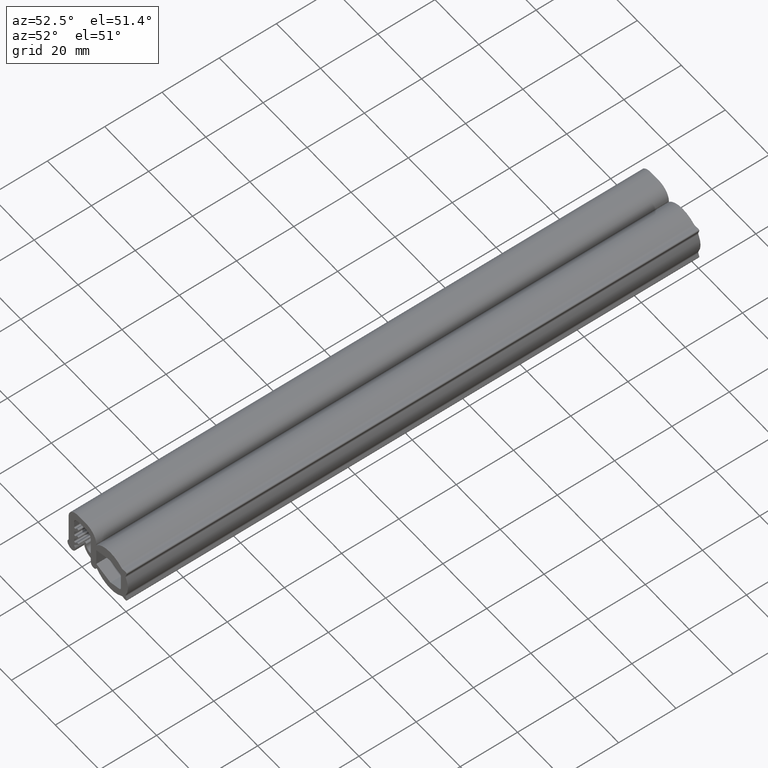
[diagram: clean part render]
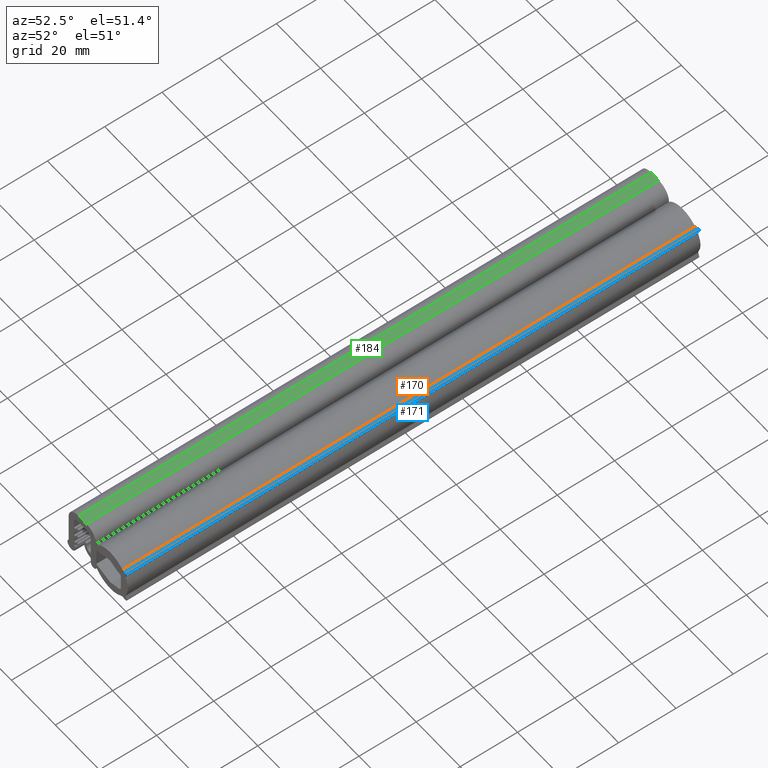
[diagram: same view with three faces highlighted in distinct colors, each labeled with its STEP entity id]
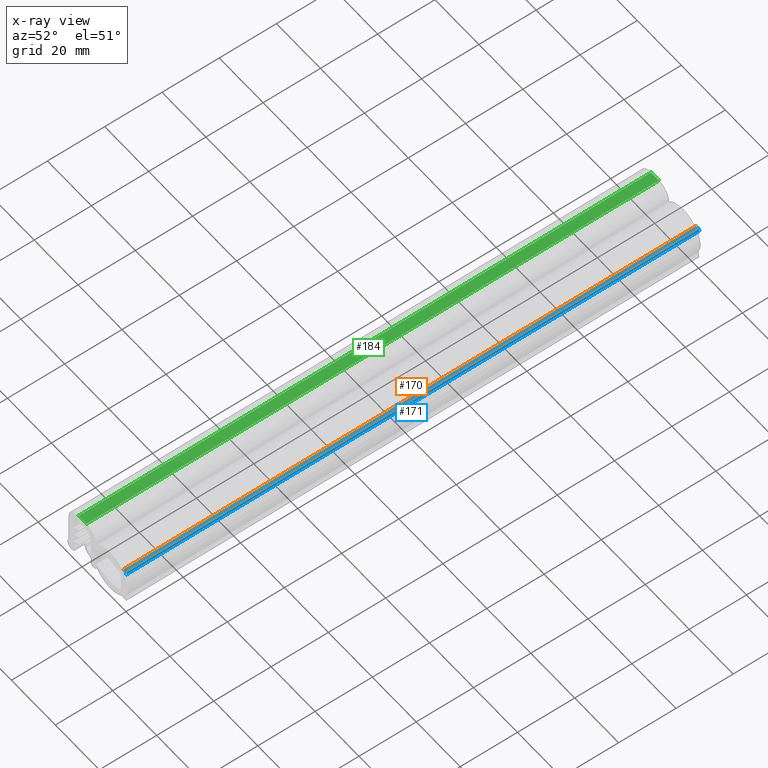
[diagram: x-ray of the same camera — body ghosted, the three highlighted faces saturated]
A machine part, auxiliary view with three faces highlighted in distinct colors.
The next image is the same camera in x-ray (body ghosted, the three faces saturated) — at least one of them is partly hidden behind the body in this view.
Their STEP definitions:

[orange] entity #170 — the highlighted planar face has unit normal (-0.1683, 0, 0.9857).
#170=ADVANCED_FACE('',(#451),#450,.T.);
#450=PLANE('',#1260);
#451=FACE_OUTER_BOUND('',#1261,.T.);
#1257=CARTESIAN_POINT('',(1.85283006118E+01,-1.00000000000E+01,1.42167251629E+01));
#1258=DIRECTION('',(-1.68327613766E-01,0.00000000000E+00,9.85731106562E-01));
#1259=DIRECTION('',(9.85731106562E-01,0.00000000000E+00,1.68327613766E-01));
#1260=AXIS2_PLACEMENT_3D('',#1257,#1258,#1259);
#1261=EDGE_LOOP('',(#1743,#1744,#1745,#1746));
#1743=ORIENTED_EDGE('',*,*,#2165,.F.);
#1744=ORIENTED_EDGE('',*,*,#2197,.F.);
#1745=ORIENTED_EDGE('',*,*,#2145,.T.);
#1746=ORIENTED_EDGE('',*,*,#2196,.T.);
#2145=EDGE_CURVE('',#2554,#2547,#2555,.T.);
#2165=EDGE_CURVE('',#2686,#2693,#2694,.T.);
#2196=EDGE_CURVE('',#2547,#2693,#2894,.T.);
#2197=EDGE_CURVE('',#2554,#2686,#2900,.T.);
#2547=VERTEX_POINT('',#4184);
#2554=VERTEX_POINT('',#4189);
#2555=LINE('',#4190,#4191);
#2686=VERTEX_POINT('',#4272);
#2693=VERTEX_POINT('',#4277);
#2694=LINE('',#4278,#4279);
#2894=LINE('',#4393,#4394);
#2900=LINE('',#4396,#4397);
#4184=CARTESIAN_POINT('',(1.86413174534E+01,2.00000000000E+02,1.42360243969E+01));
#4189=CARTESIAN_POINT('',(1.97714858697E+01,2.00000000000E+02,1.44290167367E+01));
#4190=CARTESIAN_POINT('',(1.97714858697E+01,2.00000000000E+02,1.44290167367E+01));
#4191=VECTOR('',#4192,1.14652810363E+00);
#4192=DIRECTION('',(-9.85731106562E-01,0.00000000000E+00,-1.68327613766E-01));
#4272=CARTESIAN_POINT('',(1.97714858697E+01,0.00000000000E+00,1.44290167367E+01));
#4277=CARTESIAN_POINT('',(1.86413174534E+01,0.00000000000E+00,1.42360243969E+01));
#4278=CARTESIAN_POINT('',(1.97714858697E+01,0.00000000000E+00,1.44290167367E+01));
#4279=VECTOR('',#4280,1.14652810363E+00);
#4280=DIRECTION('',(-9.85731106562E-01,0.00000000000E+00,-1.68327613766E-01));
#4393=CARTESIAN_POINT('',(1.86413174534E+01,2.00000000000E+02,1.42360243969E+01));
#4394=VECTOR('',#4395,2.00000000000E+02);
#4395=DIRECTION('',(0.00000000000E+00,-1.00000000000E+00,0.00000000000E+00));
#4396=CARTESIAN_POINT('',(1.97714858697E+01,2.00000000000E+02,1.44290167367E+01));
#4397=VECTOR('',#4398,2.00000000000E+02);
#4398=DIRECTION('',(0.00000000000E+00,-1.00000000000E+00,0.00000000000E+00));

[blue] entity #171 — the highlighted cylindrical surface (edge-blend (fillet) strip) has radius 0.5 mm, axis along (0, 1, 0).
#171=ADVANCED_FACE('',(#461),#460,.T.);
#460=CYLINDRICAL_SURFACE('',#1265,5.00000000000E-01);
#461=FACE_OUTER_BOUND('',#1266,.T.);
#1262=CARTESIAN_POINT('',(1.98556496766E+01,1.00000000000E+03,1.39361511834E+01));
#1263=DIRECTION('',(-0.00000000000E+00,1.00000000000E+00,-0.00000000000E+00));
#1264=DIRECTION('',(-7.66044443119E-01,0.00000000000E+00,-6.42787609687E-01));
#1265=AXIS2_PLACEMENT_3D('',#1262,#1263,#1264);
#1266=EDGE_LOOP('',(#1747,#1748,#1749,#1750));
#1747=ORIENTED_EDGE('',*,*,#2164,.F.);
#1748=ORIENTED_EDGE('',*,*,#2198,.F.);
#1749=ORIENTED_EDGE('',*,*,#2146,.T.);
#1750=ORIENTED_EDGE('',*,*,#2197,.T.);
#2146=EDGE_CURVE('',#2561,#2554,#2562,.T.);
#2164=EDGE_CURVE('',#2679,#2686,#2687,.T.);
#2197=EDGE_CURVE('',#2554,#2686,#2900,.T.);
#2198=EDGE_CURVE('',#2561,#2679,#2906,.T.);
#2554=VERTEX_POINT('',#4189);
#2561=VERTEX_POINT('',#4193);
#2562=CIRCLE('',#4197,5.00000000000E-01);
#2679=VERTEX_POINT('',#4268);
#2686=VERTEX_POINT('',#4272);
#2687=CIRCLE('',#4276,5.00000000000E-01);
#2900=LINE('',#4396,#4397);
#2906=LINE('',#4399,#4400);
#4189=CARTESIAN_POINT('',(1.97714858697E+01,2.00000000000E+02,1.44290167367E+01));
#4193=CARTESIAN_POINT('',(2.03245656698E+01,2.00000000000E+02,1.37626064016E+01));
#4194=CARTESIAN_POINT('',(1.98556496766E+01,2.00000000000E+02,1.39361511834E+01));
#4195=DIRECTION('',(0.00000000000E+00,-1.00000000000E+00,0.00000000000E+00));
#4196=DIRECTION('',(-0.00000000000E+00,-0.00000000000E+00,-1.00000000000E+00));
#4197=AXIS2_PLACEMENT_3D('',#4194,#4195,#4196);
#4268=CARTESIAN_POINT('',(2.03245656698E+01,0.00000000000E+00,1.37626064016E+01));
#4272=CARTESIAN_POINT('',(1.97714858697E+01,0.00000000000E+00,1.44290167367E+01));
#4273=CARTESIAN_POINT('',(1.98556496766E+01,0.00000000000E+00,1.39361511834E+01));
#4274=DIRECTION('',(0.00000000000E+00,-1.00000000000E+00,0.00000000000E+00));
#4275=DIRECTION('',(-0.00000000000E+00,-0.00000000000E+00,-1.00000000000E+00));
#4276=AXIS2_PLACEMENT_3D('',#4273,#4274,#4275);
#4396=CARTESIAN_POINT('',(1.97714858697E+01,2.00000000000E+02,1.44290167367E+01));
#4397=VECTOR('',#4398,2.00000000000E+02);
#4398=DIRECTION('',(0.00000000000E+00,-1.00000000000E+00,0.00000000000E+00));
#4399=CARTESIAN_POINT('',(2.03245656698E+01,2.00000000000E+02,1.37626064016E+01));
#4400=VECTOR('',#4401,2.00000000000E+02);
#4401=DIRECTION('',(0.00000000000E+00,-1.00000000000E+00,0.00000000000E+00));

[green] entity #184 — the highlighted planar face has unit normal (0, 0, 1).
#184=ADVANCED_FACE('',(#591),#590,.T.);
#590=PLANE('',#1330);
#591=FACE_OUTER_BOUND('',#1331,.T.);
#1327=CARTESIAN_POINT('',(-1.96000000000E+00,-1.00000000000E+01,1.80000000000E+01));
#1328=DIRECTION('',(0.00000000000E+00,0.00000000000E+00,1.00000000000E+00));
#1329=DIRECTION('',(1.00000000000E+00,0.00000000000E+00,0.00000000000E+00));
#1330=AXIS2_PLACEMENT_3D('',#1327,#1328,#1329);
#1331=EDGE_LOOP('',(#1799,#1800,#1801,#1802));
#1799=ORIENTED_EDGE('',*,*,#2220,.F.);
#1800=ORIENTED_EDGE('',*,*,#2219,.F.);
#1801=ORIENTED_EDGE('',*,*,#2221,.T.);
#1802=ORIENTED_EDGE('',*,*,#2222,.T.);
#2219=EDGE_CURVE('',#3037,#3023,#3044,.T.);
#2220=EDGE_CURVE('',#3023,#3050,#3051,.T.);
#2221=EDGE_CURVE('',#3037,#3057,#3058,.T.);
#2222=EDGE_CURVE('',#3057,#3050,#3064,.T.);
#3023=VERTEX_POINT('',#4464);
#3037=VERTEX_POINT('',#4473);
#3044=LINE('',#4478,#4479);
#3050=VERTEX_POINT('',#4481);
#3051=LINE('',#4482,#4483);
#3057=VERTEX_POINT('',#4485);
#3058=LINE('',#4486,#4487);
#3064=LINE('',#4489,#4490);
#4464=CARTESIAN_POINT('',(2.00000000000E+00,0.00000000000E+00,1.80000000000E+01));
#4473=CARTESIAN_POINT('',(2.00000000000E+00,2.00000000000E+02,1.80000000000E+01));
#4478=CARTESIAN_POINT('',(2.00000000000E+00,2.00000000000E+02,1.80000000000E+01));
#4479=VECTOR('',#4480,2.00000000000E+02);
#4480=DIRECTION('',(0.00000000000E+00,-1.00000000000E+00,0.00000000000E+00));
#4481=CARTESIAN_POINT('',(-1.60000000000E+00,0.00000000000E+00,1.80000000000E+01));
#4482=CARTESIAN_POINT('',(2.00000000000E+00,0.00000000000E+00,1.80000000000E+01));
#4483=VECTOR('',#4484,3.60000000000E+00);
#4484=DIRECTION('',(-1.00000000000E+00,0.00000000000E+00,0.00000000000E+00));
#4485=CARTESIAN_POINT('',(-1.60000000000E+00,2.00000000000E+02,1.80000000000E+01));
#4486=CARTESIAN_POINT('',(2.00000000000E+00,2.00000000000E+02,1.80000000000E+01));
#4487=VECTOR('',#4488,3.60000000000E+00);
#4488=DIRECTION('',(-1.00000000000E+00,0.00000000000E+00,0.00000000000E+00));
#4489=CARTESIAN_POINT('',(-1.60000000000E+00,2.00000000000E+02,1.80000000000E+01));
#4490=VECTOR('',#4491,2.00000000000E+02);
#4491=DIRECTION('',(0.00000000000E+00,-1.00000000000E+00,0.00000000000E+00));